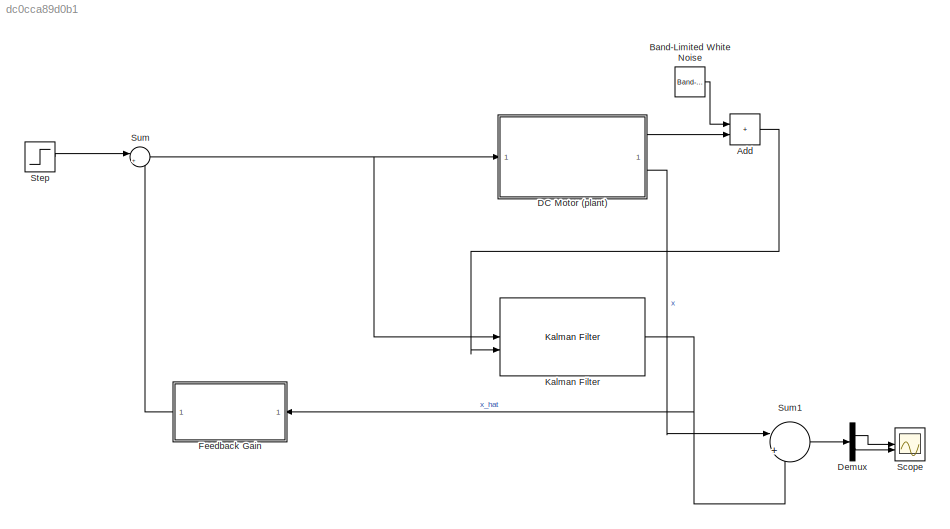
MODEL slx_dc0cca89d0b1
KIND model
CONFIG AbsTol = auto
CONFIG EnableMultiTasking = off
CONFIG FixedStep = auto
CONFIG MaxStep = auto
CONFIG MinStep = auto
CONFIG RelTol = 1e-3
CONFIG SampleTimeConstraint = Unconstrained
CONFIG SolverName = VariableStepAuto
CONFIG StartTime = 0.0
CONFIG StopTime = 10.0
BLOCK [Sum] Add
  IconShape = rectangular
BLOCK [Reference] Band-Limited White Noise  REF=simulink/Sources/Band-Limited
White Noise
  SourceBlock = simulink/Sources/Band-Limited\nWhite Noise
  SourceType = Band-Limited White Noise.
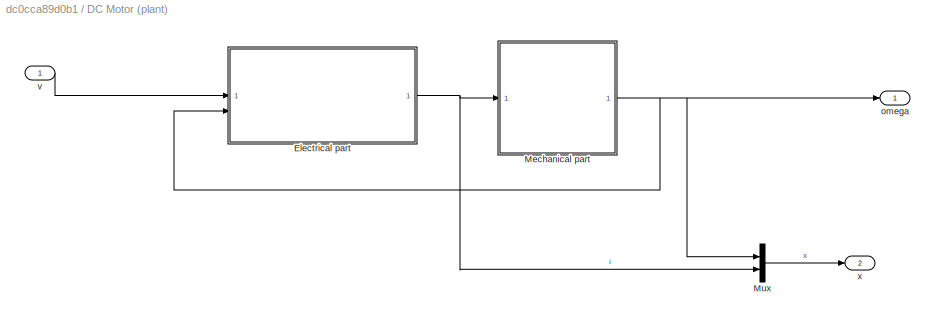
BLOCK [SubSystem] DC Motor (plant)
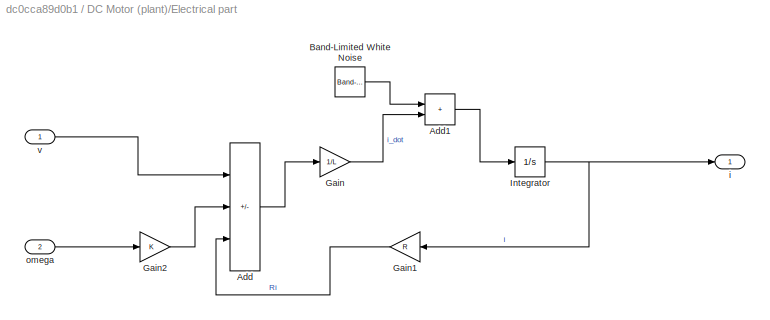
BLOCK [SubSystem] DC Motor (plant)/Electrical part 
BLOCK [Sum] DC Motor (plant)/Electrical part /Add
  IconShape = rectangular
  Inputs = +--
BLOCK [Sum] DC Motor (plant)/Electrical part /Add1
  IconShape = rectangular
BLOCK [Reference] DC Motor (plant)/Electrical part /Band-Limited White Noise  REF=simulink/Sources/Band-Limited
White Noise
  SourceBlock = simulink/Sources/Band-Limited\nWhite Noise
  SourceType = Band-Limited White Noise.
BLOCK [Gain] DC Motor (plant)/Electrical part /Gain
  Gain = 1/L
BLOCK [Gain] DC Motor (plant)/Electrical part /Gain1
  Gain = R
  NameLocation = top
BLOCK [Gain] DC Motor (plant)/Electrical part /Gain2
  Gain = K
BLOCK [Integrator] DC Motor (plant)/Electrical part /Integrator
BLOCK [Outport] DC Motor (plant)/Electrical part /i
BLOCK [Inport] DC Motor (plant)/Electrical part /omega
  Port = 2
BLOCK [Inport] DC Motor (plant)/Electrical part /v
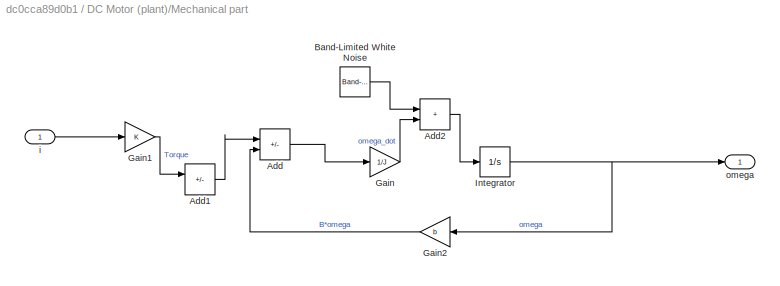
BLOCK [SubSystem] DC Motor (plant)/Mechanical part
BLOCK [Sum] DC Motor (plant)/Mechanical part/Add
  IconShape = rectangular
  Inputs = +-
BLOCK [Sum] DC Motor (plant)/Mechanical part/Add1
  IconShape = rectangular
  Inputs = +-
BLOCK [Sum] DC Motor (plant)/Mechanical part/Add2
  IconShape = rectangular
BLOCK [Reference] DC Motor (plant)/Mechanical part/Band-Limited White Noise  REF=simulink/Sources/Band-Limited
White Noise
  SourceBlock = simulink/Sources/Band-Limited\nWhite Noise
  SourceType = Band-Limited White Noise.
BLOCK [Gain] DC Motor (plant)/Mechanical part/Gain
  Gain = 1/J
BLOCK [Gain] DC Motor (plant)/Mechanical part/Gain1
  Gain = K
BLOCK [Gain] DC Motor (plant)/Mechanical part/Gain2
  Gain = b
  NameLocation = top
BLOCK [Integrator] DC Motor (plant)/Mechanical part/Integrator
BLOCK [Inport] DC Motor (plant)/Mechanical part/i
BLOCK [Outport] DC Motor (plant)/Mechanical part/omega
BLOCK [Mux] DC Motor (plant)/Mux
  DisplayOption = bar
  Inputs = 2
BLOCK [Outport] DC Motor (plant)/omega
BLOCK [Inport] DC Motor (plant)/v
BLOCK [Outport] DC Motor (plant)/x
  Port = 2
BLOCK [Demux] Demux
  Outputs = 2
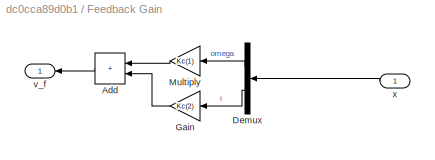
BLOCK [SubSystem] Feedback Gain
  NameLocation = top
BLOCK [Sum] Feedback Gain/Add
  IconShape = rectangular
  NameLocation = top
BLOCK [Demux] Feedback Gain/Demux
  NameLocation = top
  Outputs = 2
BLOCK [Gain] Feedback Gain/Gain
  Gain = Kc(2)
  NameLocation = top
BLOCK [Gain] Feedback Gain/Multiply
  Gain = Kc(1)
  NameLocation = top
BLOCK [Outport] Feedback Gain/v_f
BLOCK [Inport] Feedback Gain/x
  NameLocation = top
BLOCK [Reference] Kalman Filter  REF=ctrlSharedLib/Kalman Filter
  LibrarySourceBlock = cstblocks/State Estimation/Kalman Filter
  SourceBlock = ctrlSharedLib/Kalman Filter
  SourceType = ctrlKalmanFilter
BLOCK [Scope] Scope
  Floating = off
  NumInputPorts = 2
  ScopeSpecificationString = Simulink.scopes.TimeScopeBlockCfg('CurrentConfiguration', extmgr.ConfigurationSet(extmgr.Configuration('Core','General UI',true),extmgr.Configuration('Core','Source UI',true),extmgr.Configuration('Sources','WiredSimulink',true),extmgr.Configuration('Visuals','Time Domain',true,'SerializedDisplays',{struct('MinYLimReal','-0.11397','MaxYLimReal','0.10695','YLabelReal','','MinYLimMag','0.00000','MaxY...<+2196ch>
BLOCK [Step] Step
  SampleTime = 0
BLOCK [Sum] Sum
  Inputs = |+-
BLOCK [Sum] Sum1
  Inputs = |+-
LINE Add:1 -> Kalman Filter:2
LINE Band-Limited White Noise:1 -> Add:1
LINE DC Motor (plant)/Electrical part /Add1:1 -> DC Motor (plant)/Electrical part /Integrator:1
LINE DC Motor (plant)/Electrical part /Add:1 -> DC Motor (plant)/Electrical part /Gain:1
LINE DC Motor (plant)/Electrical part /Band-Limited White Noise:1 -> DC Motor (plant)/Electrical part /Add1:1
LINE DC Motor (plant)/Electrical part /Gain1:1 -> DC Motor (plant)/Electrical part /Add:3
LINE DC Motor (plant)/Electrical part /Gain2:1 -> DC Motor (plant)/Electrical part /Add:2
LINE DC Motor (plant)/Electrical part /Gain:1 -> DC Motor (plant)/Electrical part /Add1:2
NET DC Motor (plant)/Electrical part /Integrator:1 -> DC Motor (plant)/Electrical part /Gain1:1, DC Motor (plant)/Electrical part /i:1
LINE DC Motor (plant)/Electrical part /omega:1 -> DC Motor (plant)/Electrical part /Gain2:1
LINE DC Motor (plant)/Electrical part /v:1 -> DC Motor (plant)/Electrical part /Add:1
NET DC Motor (plant)/Electrical part :1 -> DC Motor (plant)/Mechanical part:1, DC Motor (plant)/Mux:2
LINE DC Motor (plant)/Mechanical part/Add1:1 -> DC Motor (plant)/Mechanical part/Add:1
LINE DC Motor (plant)/Mechanical part/Add2:1 -> DC Motor (plant)/Mechanical part/Integrator:1
LINE DC Motor (plant)/Mechanical part/Add:1 -> DC Motor (plant)/Mechanical part/Gain:1
LINE DC Motor (plant)/Mechanical part/Band-Limited White Noise:1 -> DC Motor (plant)/Mechanical part/Add2:1
LINE DC Motor (plant)/Mechanical part/Gain1:1 -> DC Motor (plant)/Mechanical part/Add1:1
LINE DC Motor (plant)/Mechanical part/Gain2:1 -> DC Motor (plant)/Mechanical part/Add:2
LINE DC Motor (plant)/Mechanical part/Gain:1 -> DC Motor (plant)/Mechanical part/Add2:2
NET DC Motor (plant)/Mechanical part/Integrator:1 -> DC Motor (plant)/Mechanical part/Gain2:1, DC Motor (plant)/Mechanical part/omega:1
LINE DC Motor (plant)/Mechanical part/i:1 -> DC Motor (plant)/Mechanical part/Gain1:1
NET DC Motor (plant)/Mechanical part:1 -> DC Motor (plant)/Electrical part :2, DC Motor (plant)/Mux:1, DC Motor (plant)/omega:1
LINE DC Motor (plant)/Mux:1 -> DC Motor (plant)/x:1
LINE DC Motor (plant)/v:1 -> DC Motor (plant)/Electrical part :1
LINE DC Motor (plant):1 -> Add:2
LINE DC Motor (plant):2 -> Sum1:1
LINE Demux:1 -> Scope:1
LINE Demux:2 -> Scope:2
LINE Feedback Gain/Add:1 -> Feedback Gain/v_f:1
LINE Feedback Gain/Demux:1 -> Feedback Gain/Multiply:1
LINE Feedback Gain/Demux:2 -> Feedback Gain/Gain:1
LINE Feedback Gain/Gain:1 -> Feedback Gain/Add:2
LINE Feedback Gain/Multiply:1 -> Feedback Gain/Add:1
LINE Feedback Gain/x:1 -> Feedback Gain/Demux:1
LINE Feedback Gain:1 -> Sum:2
NET Kalman Filter:1 -> Feedback Gain:1, Sum1:2
LINE Step:1 -> Sum:1
LINE Sum1:1 -> Demux:1
NET Sum:1 -> DC Motor (plant):1, Kalman Filter:1
note: NET lines group one-source signal fan-out (src -> all destinations, sorted); 1:1 wires keep LINE
